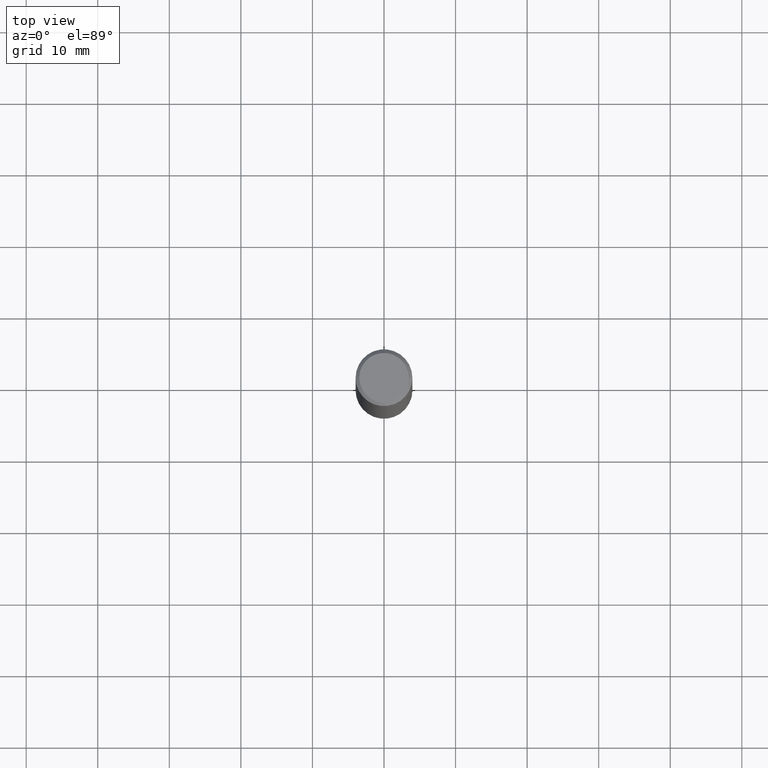
[diagram: clean part render]
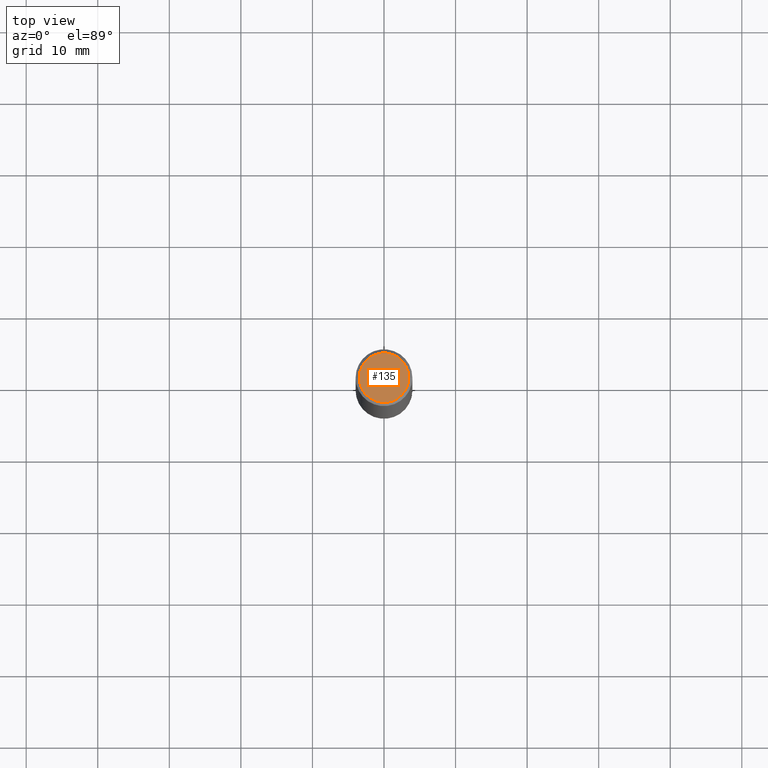
[diagram: same view with one face highlighted and labeled with its STEP entity id]
A machine part, top view. The second image highlights one B-rep face of the part: STEP entity #135.
In plain terms, the highlighted planar face has unit normal (0, -0, -1).
Its self-contained STEP definition (entity closure, byte-faithful):
#9 = DIRECTION ( 'NONE',  ( -2.445468806185136597E-29, 3.491481338843145583E-15, 1.000000000000000000 ) ) ;
#11 = ORIENTED_EDGE ( 'NONE', *, *, #362, .T. ) ;
#32 = DIRECTION ( 'NONE',  ( 2.438088387897960049E-29, -3.491481338843145188E-15, -1.000000000000000000 ) ) ;
#36 = CARTESIAN_POINT ( 'NONE',  ( 0.000000000000000000, 0.000000000000000000, 0.000000000000000000 ) ) ;
#37 = DIRECTION ( 'NONE',  ( -2.445468806185136597E-29, 3.491481338843145583E-15, 1.000000000000000000 ) ) ;
#61 = PLANE ( 'NONE',  #197 ) ;
#65 = CIRCLE ( 'NONE', #83, 0.1362499999999997047 ) ;
#68 = DIRECTION ( 'NONE',  ( 1.000000000000000000, -6.982962677686266711E-15, 4.876176775795936353E-29 ) ) ;
#72 = DIRECTION ( 'NONE',  ( 1.000000000000000000, -6.982962677686266711E-15, 4.876176775795936353E-29 ) ) ;
#83 = AXIS2_PLACEMENT_3D ( 'NONE', #36, #9, #68 ) ;
#96 = CIRCLE ( 'NONE', #129, 0.1362499999999997047 ) ;
#101 = VERTEX_POINT ( 'NONE', #300 ) ;
#104 = CARTESIAN_POINT ( 'NONE',  ( 0.000000000000000000, 0.000000000000000000, 0.000000000000000000 ) ) ;
#129 = AXIS2_PLACEMENT_3D ( 'NONE', #104, #37, #72 ) ;
#135 = ADVANCED_FACE ( 'NONE', ( #153 ), #61, .F. ) ;
#153 = FACE_OUTER_BOUND ( 'NONE', #292, .T. ) ;
#155 = CARTESIAN_POINT ( 'NONE',  ( 9.514286648347515911E-16, 0.1362499999999997047, -4.757143324173775705E-16 ) ) ;
#197 = AXIS2_PLACEMENT_3D ( 'NONE', #155, #32, #212 ) ;
#202 = VERTEX_POINT ( 'NONE', #364 ) ;
#212 = DIRECTION ( 'NONE',  ( -1.000000000000000000, 6.982962677686265922E-15, -4.876176775795935793E-29 ) ) ;
#292 = EDGE_LOOP ( 'NONE', ( #11, #348 ) ) ;
#300 = CARTESIAN_POINT ( 'NONE',  ( 0.1362499999999997047, -1.038262645562515955E-15, 6.957025900226681062E-30 ) ) ;
#346 = EDGE_CURVE ( 'NONE', #101, #202, #65, .T. ) ;
#348 = ORIENTED_EDGE ( 'NONE', *, *, #346, .T. ) ;
#362 = EDGE_CURVE ( 'NONE', #202, #101, #96, .T. ) ;
#364 = CARTESIAN_POINT ( 'NONE',  ( -0.1362499999999997047, 9.863434782231828457E-16, -6.775751096333124469E-30 ) ) ;